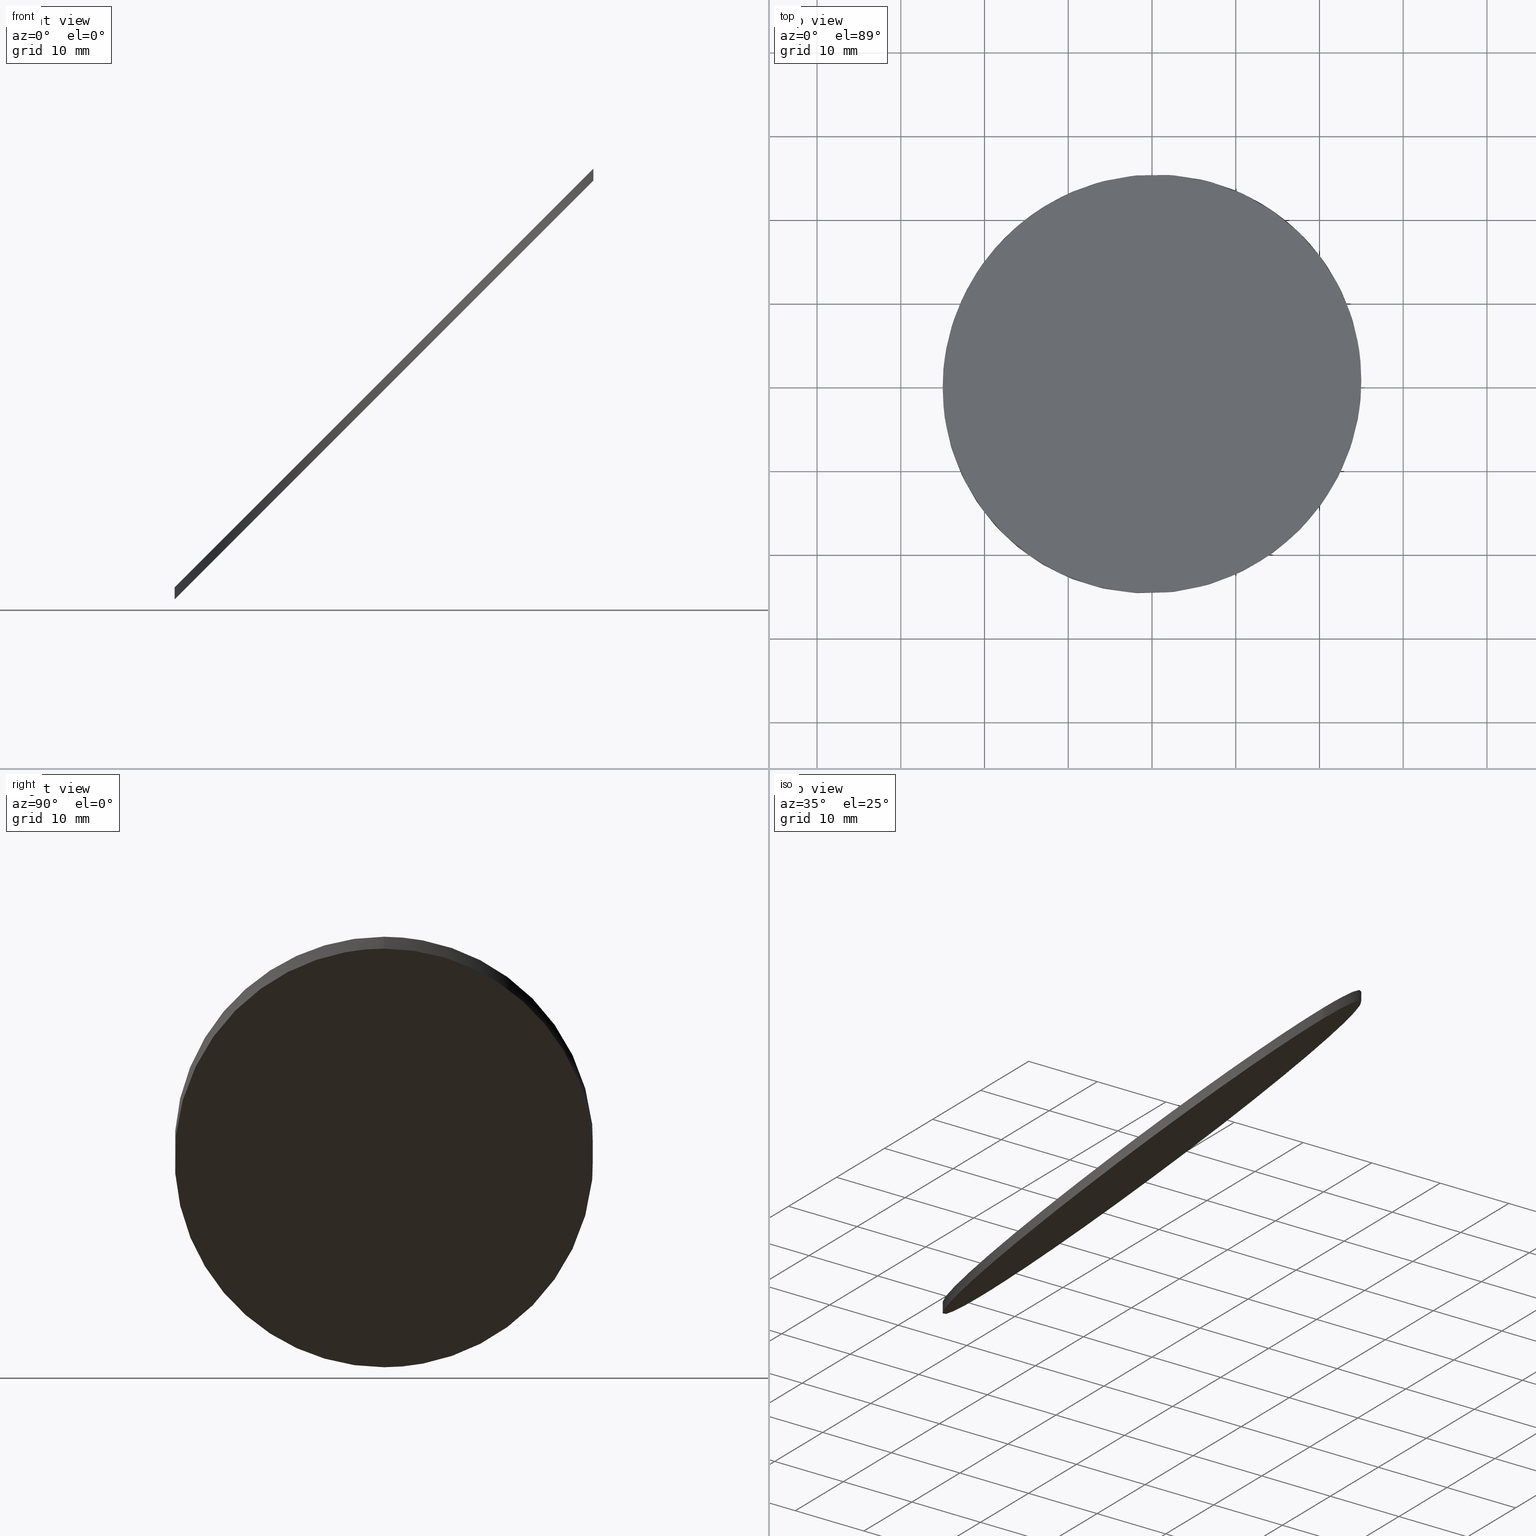
[diagram: canonical four-view strip — front | top / right | iso, engineering-drawing reading convention]
A machine part, canonical four-view strip (front | top / right | iso — engineering-drawing reading convention). The complete STEP part file that produces these views, byte-faithful:
ISO-10303-21;
HEADER;
FILE_DESCRIPTION (( 'STEP AP203' ),
    '1' );
FILE_NAME ('347502.STEP',
    '2021-02-07T05:53:12',
    ( '' ),
    ( '' ),
    'SwSTEP 2.0',
    'SolidWorks 2019',
    '' );
FILE_SCHEMA (( 'CONFIG_CONTROL_DESIGN' ));
ENDSEC;

DATA;
#1 = VERTEX_POINT ( 'NONE', #118 ) ;
#2 = AXIS2_PLACEMENT_3D ( 'NONE', #39, #83, #160 ) ;
#3 = COORDINATED_UNIVERSAL_TIME_OFFSET ( 8, 0, .AHEAD. ) ;
#4 = PERSON_AND_ORGANIZATION ( #58, #19 ) ;
#5 = CARTESIAN_POINT ( 'NONE',  ( -25.00000000000000000, 0.000000000000000000, 7.366540713605735036 ) ) ;
#6 = LOCAL_TIME ( 13, 53, 12.00000000000000000, #119 ) ;
#7 = CARTESIAN_POINT ( 'NONE',  ( -38.23769816666228394, -30.50000000000000711, -5.871157453056501829 ) ) ;
#8 = PERSON_AND_ORGANIZATION_ROLE ( 'creator' ) ;
#9 = PRODUCT ( '347502', '347502', '', ( #124 ) ) ;
#10 = CARTESIAN_POINT ( 'NONE',  ( 25.00000000000000000, 3.061616997868382254E-15, 55.95232715123241007 ) ) ;
#11 = AXIS2_PLACEMENT_3D ( 'NONE', #48, #51, #155 ) ;
#12 = AXIS2_PLACEMENT_3D ( 'NONE', #7, #104, #18 ) ;
#13 = ORIENTED_EDGE ( 'NONE', *, *, #40, .T. ) ;
#14 = EDGE_CURVE ( 'NONE', #1, #101, #34, .T. ) ;
#15 = CALENDAR_DATE ( 2021, 7, 2 ) ;
#16 = DESIGN_CONTEXT ( 'detailed design', #35, 'design' ) ;
#17 = DIRECTION ( 'NONE',  ( 1.000000000000000000, 0.000000000000000000, 0.000000000000000000 ) ) ;
#18 = DIRECTION ( 'NONE',  ( -0.7071067811865489050, 0.000000000000000000, -0.7071067811865462405 ) ) ;
#19 = ORGANIZATION ( 'δָ��', 'δָ��', '' ) ;
#20 = PERSON_AND_ORGANIZATION ( #58, #19 ) ;
#21 = CARTESIAN_POINT ( 'NONE',  ( -25.00000000000001066, -49.99999999999997868, 5.952327151232617020 ) ) ;
#22 = ADVANCED_FACE ( 'NONE', ( #107 ), #135, .F. ) ;
#23 = CARTESIAN_POINT ( 'NONE',  ( 25.00000000000002132, 49.99999999999997868, 55.95232715123243139 ) ) ;
#24 = PERSON_AND_ORGANIZATION ( #58, #19 ) ;
#25 = CARTESIAN_POINT ( 'NONE',  ( -25.00000000000001066, 49.99999999999997868, 5.952327151232617020 ) ) ;
#26 = APPROVAL_DATE_TIME ( #55, #86 ) ;
#27 = CC_DESIGN_DATE_AND_TIME_ASSIGNMENT ( #47, #57, ( #94 ) ) ;
#28 = APPLICATION_CONTEXT ( 'configuration controlled 3d designs of mechanical parts and assemblies' ) ;
#29 = EDGE_CURVE ( 'NONE', #101, #1, #92, .T. ) ;
#30 = ORIENTED_EDGE ( 'NONE', *, *, #110, .F. ) ;
#31 = APPROVAL ( #105, 'δָ��' ) ;
#32 = PERSON_AND_ORGANIZATION_ROLE ( 'design_owner' ) ;
#33 = APPROVAL_DATE_TIME ( #173, #31 ) ;
#34 =( BOUNDED_CURVE ( )  B_SPLINE_CURVE ( 3, ( #144, #46, #76, #132 ),
 .UNSPECIFIED., .F., .F. ) 
 B_SPLINE_CURVE_WITH_KNOTS ( ( 4, 4 ),
 ( 0.000000000000000000, 3.141592653589793116 ),
 .UNSPECIFIED. ) 
 CURVE ( )  GEOMETRIC_REPRESENTATION_ITEM ( )  RATIONAL_B_SPLINE_CURVE ( ( 1.000000000000000000, 0.3333333333333333703, 0.3333333333333333703, 1.000000000000000000 ) ) 
 REPRESENTATION_ITEM ( '' )  );
#35 = APPLICATION_CONTEXT ( 'configuration controlled 3d designs of mechanical parts and assemblies' ) ;
#36 = APPROVAL ( #131, 'δָ��' ) ;
#37 = APPROVAL_ROLE ( '' ) ;
#38 = ADVANCED_FACE ( 'NONE', ( #120 ), #171, .F. ) ;
#39 = CARTESIAN_POINT ( 'NONE',  ( 0.000000000000000000, 0.000000000000000000, 61.00000000000001421 ) ) ;
#40 = EDGE_CURVE ( 'NONE', #1, #66, #93, .T. ) ;
#41 = LOCAL_TIME ( 13, 53, 12.00000000000000000, #3 ) ;
#42 =( BOUNDED_CURVE ( )  B_SPLINE_CURVE ( 3, ( #164, #21, #126, #97 ),
 .UNSPECIFIED., .F., .T. ) 
 B_SPLINE_CURVE_WITH_KNOTS ( ( 4, 4 ),
 ( 0.000000000000000000, 3.141592653589793116 ),
 .UNSPECIFIED. ) 
 CURVE ( )  GEOMETRIC_REPRESENTATION_ITEM ( )  RATIONAL_B_SPLINE_CURVE ( ( 1.000000000000000000, 0.3333333333333333703, 0.3333333333333333703, 1.000000000000000000 ) ) 
 REPRESENTATION_ITEM ( '' )  );
#43 = ADVANCED_BREP_SHAPE_REPRESENTATION ( '347502', ( #102, #151 ), #143 ) ;
#44 = ORIENTED_EDGE ( 'NONE', *, *, #14, .T. ) ;
#45 = CC_DESIGN_PERSON_AND_ORGANIZATION_ASSIGNMENT ( #4, #96, ( #94 ) ) ;
#46 = CARTESIAN_POINT ( 'NONE',  ( -25.00000000000001066, 50.00000000000000000, 7.366540713605732371 ) ) ;
#47 = DATE_AND_TIME ( #169, #6 ) ;
#48 = CARTESIAN_POINT ( 'NONE',  ( -37.53059138547573781, -30.50000000000000711, -6.578264234243048847 ) ) ;
#49 = CALENDAR_DATE ( 2021, 7, 2 ) ;
#50 = DATE_AND_TIME ( #15, #103 ) ;
#51 = DIRECTION ( 'NONE',  ( -0.7071067811865461294, 0.000000000000000000, 0.7071067811865490160 ) ) ;
#52 = CARTESIAN_POINT ( 'NONE',  ( 0.000000000000000000, 0.000000000000000000, 0.000000000000000000 ) ) ;
#53 = COORDINATED_UNIVERSAL_TIME_OFFSET ( 8, 0, .AHEAD. ) ;
#54 = DIRECTION ( 'NONE',  ( -0.000000000000000000, -0.000000000000000000, -1.000000000000000000 ) ) ;
#55 = DATE_AND_TIME ( #159, #148 ) ;
#56 = DIRECTION ( 'NONE',  ( -0.000000000000000000, -0.000000000000000000, -1.000000000000000000 ) ) ;
#57 = DATE_TIME_ROLE ( 'classification_date' ) ;
#58 = PERSON ( 'δָ��', 'δָ��', 'δָ��', ('δָ��'), ('δָ��'), ('δָ��') ) ;
#59 = ORIENTED_EDGE ( 'NONE', *, *, #110, .T. ) ;
#60 = CC_DESIGN_PERSON_AND_ORGANIZATION_ASSIGNMENT ( #65, #8, ( #75 ) ) ;
#61 = ORIENTED_EDGE ( 'NONE', *, *, #70, .F. ) ;
#62 = CARTESIAN_POINT ( 'NONE',  ( -25.00000000000000000, 0.000000000000000000, 61.00000000000001421 ) ) ;
#63 = ORIENTED_EDGE ( 'NONE', *, *, #29, .F. ) ;
#64 = PRODUCT_RELATED_PRODUCT_CATEGORY ( 'detail', '', ( #9 ) ) ;
#65 = PERSON_AND_ORGANIZATION ( #58, #19 ) ;
#66 = VERTEX_POINT ( 'NONE', #161 ) ;
#67 = CARTESIAN_POINT ( 'NONE',  ( 25.00000000000001066, -50.00000000000000000, 57.36654071360556628 ) ) ;
#68 = APPROVAL_ROLE ( '' ) ;
#69 = CARTESIAN_POINT ( 'NONE',  ( 25.00000000000000000, 3.061616997868382254E-15, 61.00000000000001421 ) ) ;
#70 = EDGE_CURVE ( 'NONE', #113, #66, #129, .T. ) ;
#71 = CC_DESIGN_DATE_AND_TIME_ASSIGNMENT ( #77, #123, ( #133 ) ) ;
#72 = APPROVAL_PERSON_ORGANIZATION ( #24, #86, #68 ) ;
#73 = PRODUCT_DEFINITION_SHAPE ( 'NONE', 'NONE',  #133 ) ;
#74 = ORIENTED_EDGE ( 'NONE', *, *, #40, .F. ) ;
#75 = PRODUCT_DEFINITION_FORMATION_WITH_SPECIFIED_SOURCE ( '�κ�', '', #9, .NOT_KNOWN. ) ;
#76 = CARTESIAN_POINT ( 'NONE',  ( 25.00000000000000000, 50.00000000000000000, 57.36654071360555207 ) ) ;
#77 = DATE_AND_TIME ( #49, #149 ) ;
#78 = APPROVAL_DATE_TIME ( #50, #36 ) ;
#79 = CALENDAR_DATE ( 2021, 7, 2 ) ;
#80 = APPROVAL_PERSON_ORGANIZATION ( #90, #36, #167 ) ;
#81 = PERSON_AND_ORGANIZATION ( #58, #19 ) ;
#82 = FACE_OUTER_BOUND ( 'NONE', #152, .T. ) ;
#83 = DIRECTION ( 'NONE',  ( -0.000000000000000000, -0.000000000000000000, -1.000000000000000000 ) ) ;
#84 =( NAMED_UNIT ( * ) SI_UNIT ( $, .STERADIAN. ) SOLID_ANGLE_UNIT ( ) );
#85 = CC_DESIGN_PERSON_AND_ORGANIZATION_ASSIGNMENT ( #116, #32, ( #9 ) ) ;
#86 = APPROVAL ( #140, 'δָ��' ) ;
#87 = ORIENTED_EDGE ( 'NONE', *, *, #70, .T. ) ;
#88 = CC_DESIGN_APPROVAL ( #31, ( #75 ) ) ;
#89 = CARTESIAN_POINT ( 'NONE',  ( -25.00000000000001066, -50.00000000000000000, 7.366540713605732371 ) ) ;
#90 = PERSON_AND_ORGANIZATION ( #58, #19 ) ;
#91 = UNCERTAINTY_MEASURE_WITH_UNIT (LENGTH_MEASURE( 1.000000000000000082E-05 ), #157, 'distance_accuracy_value', 'NONE');
#92 =( BOUNDED_CURVE ( )  B_SPLINE_CURVE ( 3, ( #154, #67, #89, #5 ),
 .UNSPECIFIED., .F., .F. ) 
 B_SPLINE_CURVE_WITH_KNOTS ( ( 4, 4 ),
 ( 3.141592653589793116, 6.283185307179586232 ),
 .UNSPECIFIED. ) 
 CURVE ( )  GEOMETRIC_REPRESENTATION_ITEM ( )  RATIONAL_B_SPLINE_CURVE ( ( 1.000000000000000000, 0.3333333333333333703, 0.3333333333333333703, 1.000000000000000000 ) ) 
 REPRESENTATION_ITEM ( '' )  );
#93 = LINE ( 'NONE', #62, #163 ) ;
#94 = SECURITY_CLASSIFICATION ( '', '', #125 ) ;
#95 = CARTESIAN_POINT ( 'NONE',  ( 25.00000000000000000, 3.061616997868382254E-15, 55.95232715123241007 ) ) ;
#96 = PERSON_AND_ORGANIZATION_ROLE ( 'classification_officer' ) ;
#97 = CARTESIAN_POINT ( 'NONE',  ( 25.00000000000000000, 3.061616997868382254E-15, 55.95232715123241007 ) ) ;
#98 =( NAMED_UNIT ( * ) PLANE_ANGLE_UNIT ( ) SI_UNIT ( $, .RADIAN. ) );
#99 = CC_DESIGN_SECURITY_CLASSIFICATION ( #94, ( #75 ) ) ;
#100 = CLOSED_SHELL ( 'NONE', ( #141, #162, #38, #22 ) ) ;
#101 = VERTEX_POINT ( 'NONE', #109 ) ;
#102 = MANIFOLD_SOLID_BREP ( '�г�-����1', #100 ) ;
#103 = LOCAL_TIME ( 13, 53, 12.00000000000000000, #134 ) ;
#104 = DIRECTION ( 'NONE',  ( 0.7071067811865462405, 0.000000000000000000, -0.7071067811865489050 ) ) ;
#105 = APPROVAL_STATUS ( 'not_yet_approved' ) ;
#106 = EDGE_LOOP ( 'NONE', ( #44, #59, #87, #74 ) ) ;
#107 = FACE_OUTER_BOUND ( 'NONE', #168, .T. ) ;
#108 = COORDINATED_UNIVERSAL_TIME_OFFSET ( 8, 0, .AHEAD. ) ;
#109 = CARTESIAN_POINT ( 'NONE',  ( 25.00000000000000000, 3.061616997868382254E-15, 57.36654071360555918 ) ) ;
#110 = EDGE_CURVE ( 'NONE', #101, #113, #158, .T. ) ;
#111 = CARTESIAN_POINT ( 'NONE',  ( 0.000000000000000000, 0.000000000000000000, 61.00000000000001421 ) ) ;
#112 = EDGE_LOOP ( 'NONE', ( #117, #61 ) ) ;
#113 = VERTEX_POINT ( 'NONE', #10 ) ;
#114 = VECTOR ( 'NONE', #54, 1000.000000000000000 ) ;
#115 = ORIENTED_EDGE ( 'NONE', *, *, #150, .T. ) ;
#116 = PERSON_AND_ORGANIZATION ( #58, #19 ) ;
#117 = ORIENTED_EDGE ( 'NONE', *, *, #150, .F. ) ;
#118 = CARTESIAN_POINT ( 'NONE',  ( -25.00000000000000000, 0.000000000000000000, 7.366540713605735036 ) ) ;
#119 = COORDINATED_UNIVERSAL_TIME_OFFSET ( 8, 0, .AHEAD. ) ;
#120 = FACE_OUTER_BOUND ( 'NONE', #112, .T. ) ;
#121 = CC_DESIGN_APPROVAL ( #36, ( #133 ) ) ;
#122 = PERSON_AND_ORGANIZATION_ROLE ( 'design_supplier' ) ;
#123 = DATE_TIME_ROLE ( 'creation_date' ) ;
#124 = MECHANICAL_CONTEXT ( 'NONE', #28, 'mechanical' ) ;
#125 = SECURITY_CLASSIFICATION_LEVEL ( 'unclassified' ) ;
#126 = CARTESIAN_POINT ( 'NONE',  ( 25.00000000000000000, -49.99999999999997868, 55.95232715123241007 ) ) ;
#127 = CYLINDRICAL_SURFACE ( 'NONE', #156, 25.00000000000000000 ) ;
#128 = APPROVAL_PERSON_ORGANIZATION ( #137, #31, #37 ) ;
#129 =( BOUNDED_CURVE ( )  B_SPLINE_CURVE ( 3, ( #95, #23, #25, #174 ),
 .UNSPECIFIED., .F., .T. ) 
 B_SPLINE_CURVE_WITH_KNOTS ( ( 4, 4 ),
 ( 3.141592653589793116, 6.283185307179586232 ),
 .UNSPECIFIED. ) 
 CURVE ( )  GEOMETRIC_REPRESENTATION_ITEM ( )  RATIONAL_B_SPLINE_CURVE ( ( 1.000000000000000000, 0.3333333333333333703, 0.3333333333333333703, 1.000000000000000000 ) ) 
 REPRESENTATION_ITEM ( '' )  );
#130 = ORIENTED_EDGE ( 'NONE', *, *, #29, .T. ) ;
#131 = APPROVAL_STATUS ( 'not_yet_approved' ) ;
#132 = CARTESIAN_POINT ( 'NONE',  ( 25.00000000000000000, 3.061616997868382254E-15, 57.36654071360555918 ) ) ;
#133 = PRODUCT_DEFINITION ( 'δ֪', '', #75, #16 ) ;
#134 = COORDINATED_UNIVERSAL_TIME_OFFSET ( 8, 0, .AHEAD. ) ;
#135 = PLANE ( 'NONE',  #12 ) ;
#136 = PERSON_AND_ORGANIZATION_ROLE ( 'creator' ) ;
#137 = PERSON_AND_ORGANIZATION ( #58, #19 ) ;
#138 = CYLINDRICAL_SURFACE ( 'NONE', #2, 25.00000000000000000 ) ;
#139 = FACE_OUTER_BOUND ( 'NONE', #106, .T. ) ;
#140 = APPROVAL_STATUS ( 'not_yet_approved' ) ;
#141 = ADVANCED_FACE ( 'NONE', ( #139 ), #127, .T. ) ;
#142 = SHAPE_DEFINITION_REPRESENTATION ( #73, #43 ) ;
#143 =( GEOMETRIC_REPRESENTATION_CONTEXT ( 3 ) GLOBAL_UNCERTAINTY_ASSIGNED_CONTEXT ( ( #91 ) ) GLOBAL_UNIT_ASSIGNED_CONTEXT ( ( #157, #98, #84 ) ) REPRESENTATION_CONTEXT ( 'NONE', 'WORKASPACE' ) );
#144 = CARTESIAN_POINT ( 'NONE',  ( -25.00000000000000000, 0.000000000000000000, 7.366540713605735036 ) ) ;
#145 = DIRECTION ( 'NONE',  ( 0.000000000000000000, 0.000000000000000000, 1.000000000000000000 ) ) ;
#146 = DIRECTION ( 'NONE',  ( -0.000000000000000000, -0.000000000000000000, -1.000000000000000000 ) ) ;
#147 = CC_DESIGN_APPROVAL ( #86, ( #94 ) ) ;
#148 = LOCAL_TIME ( 13, 53, 12.00000000000000000, #53 ) ;
#149 = LOCAL_TIME ( 13, 53, 12.00000000000000000, #108 ) ;
#150 = EDGE_CURVE ( 'NONE', #66, #113, #42, .T. ) ;
#151 = AXIS2_PLACEMENT_3D ( 'NONE', #52, #145, #17 ) ;
#152 = EDGE_LOOP ( 'NONE', ( #30, #130, #13, #115 ) ) ;
#153 = APPLICATION_PROTOCOL_DEFINITION ( 'international standard', 'config_control_design', 1994, #28 ) ;
#154 = CARTESIAN_POINT ( 'NONE',  ( 25.00000000000000000, 3.061616997868382254E-15, 57.36654071360555918 ) ) ;
#155 = DIRECTION ( 'NONE',  ( 0.7071067811865489050, 0.000000000000000000, 0.7071067811865460184 ) ) ;
#156 = AXIS2_PLACEMENT_3D ( 'NONE', #111, #56, #175 ) ;
#157 =( LENGTH_UNIT ( ) NAMED_UNIT ( * ) SI_UNIT ( .MILLI., .METRE. ) );
#158 = LINE ( 'NONE', #69, #114 ) ;
#159 = CALENDAR_DATE ( 2021, 7, 2 ) ;
#160 = DIRECTION ( 'NONE',  ( -1.000000000000000000, 0.000000000000000000, 0.000000000000000000 ) ) ;
#161 = CARTESIAN_POINT ( 'NONE',  ( -25.00000000000000000, 0.000000000000000000, 5.952327151232624125 ) ) ;
#162 = ADVANCED_FACE ( 'NONE', ( #82 ), #138, .T. ) ;
#163 = VECTOR ( 'NONE', #146, 1000.000000000000000 ) ;
#164 = CARTESIAN_POINT ( 'NONE',  ( -25.00000000000000000, 0.000000000000000000, 5.952327151232624125 ) ) ;
#165 = ORIENTED_EDGE ( 'NONE', *, *, #14, .F. ) ;
#166 = CC_DESIGN_PERSON_AND_ORGANIZATION_ASSIGNMENT ( #81, #136, ( #133 ) ) ;
#167 = APPROVAL_ROLE ( '' ) ;
#168 = EDGE_LOOP ( 'NONE', ( #165, #63 ) ) ;
#169 = CALENDAR_DATE ( 2021, 7, 2 ) ;
#170 = APPLICATION_PROTOCOL_DEFINITION ( 'international standard', 'config_control_design', 1994, #35 ) ;
#171 = PLANE ( 'NONE',  #11 ) ;
#172 = CC_DESIGN_PERSON_AND_ORGANIZATION_ASSIGNMENT ( #20, #122, ( #75 ) ) ;
#173 = DATE_AND_TIME ( #79, #41 ) ;
#174 = CARTESIAN_POINT ( 'NONE',  ( -25.00000000000000000, 0.000000000000000000, 5.952327151232624125 ) ) ;
#175 = DIRECTION ( 'NONE',  ( -1.000000000000000000, 0.000000000000000000, 0.000000000000000000 ) ) ;
ENDSEC;
END-ISO-10303-21;
